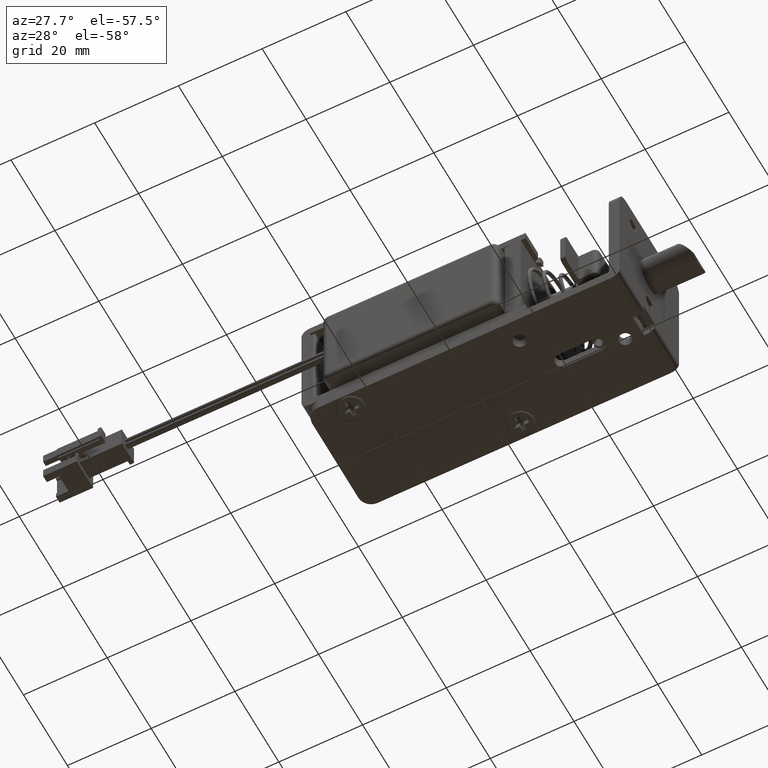
[diagram: clean part render]
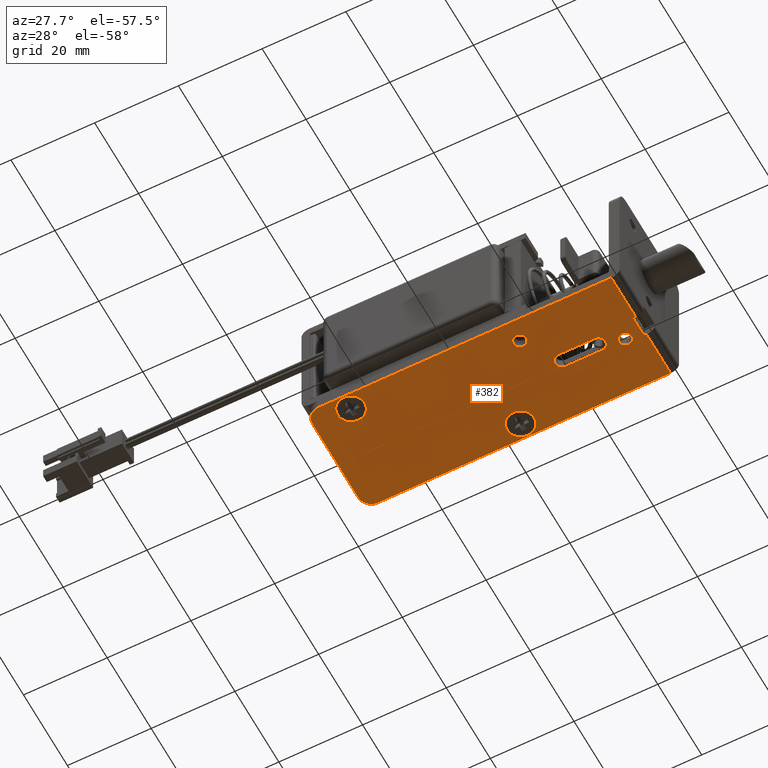
[diagram: same view with one face highlighted and labeled with its STEP entity id]
A machine part, auxiliary view. The second image highlights one B-rep face of the part: STEP entity #382.
In plain terms, the highlighted planar face has unit normal (0, 0, 1).
Its self-contained STEP definition (entity closure, byte-faithful):
#382=ADVANCED_FACE('',(#2879,#2880,#2881,#2882,#2883,#2884),#2878,.F.);
#2878=PLANE('',#5656);
#2879=FACE_OUTER_BOUND('',#5657,.T.);
#2880=FACE_BOUND('',#5658,.T.);
#2881=FACE_BOUND('',#5659,.T.);
#2882=FACE_BOUND('',#5660,.T.);
#2883=FACE_BOUND('',#5661,.T.);
#2884=FACE_BOUND('',#5662,.T.);
#5653=CARTESIAN_POINT('',(-8.23000000000E+01,-1.62000000000E+01,-1.76000000000E+01));
#5654=DIRECTION('',(0.00000000000E+00,-0.00000000000E+00,1.00000000000E+00));
#5655=DIRECTION('',(1.00000000000E+00,0.00000000000E+00,-0.00000000000E+00));
#5656=AXIS2_PLACEMENT_3D('',#5653,#5654,#5655);
#5657=EDGE_LOOP('',(#8918,#8919,#8920,#8921,#8922,#8923,#8924,#8925,#8926,#8927));
#5658=EDGE_LOOP('',(#8928,#8929));
#5659=EDGE_LOOP('',(#8930,#8931));
#5660=EDGE_LOOP('',(#8932,#8933,#8934,#8935));
#5661=EDGE_LOOP('',(#8936,#8937));
#5662=EDGE_LOOP('',(#8938,#8939));
#8918=ORIENTED_EDGE('',*,*,#10437,.T.);
#8919=ORIENTED_EDGE('',*,*,#10438,.T.);
#8920=ORIENTED_EDGE('',*,*,#10439,.F.);
#8921=ORIENTED_EDGE('',*,*,#10440,.T.);
#8922=ORIENTED_EDGE('',*,*,#10441,.F.);
#8923=ORIENTED_EDGE('',*,*,#10442,.T.);
#8924=ORIENTED_EDGE('',*,*,#10237,.F.);
#8925=ORIENTED_EDGE('',*,*,#10240,.F.);
#8926=ORIENTED_EDGE('',*,*,#10241,.F.);
#8927=ORIENTED_EDGE('',*,*,#10443,.T.);
#8928=ORIENTED_EDGE('',*,*,#10444,.T.);
#8929=ORIENTED_EDGE('',*,*,#10445,.T.);
#8930=ORIENTED_EDGE('',*,*,#10446,.F.);
#8931=ORIENTED_EDGE('',*,*,#10447,.F.);
#8932=ORIENTED_EDGE('',*,*,#10228,.F.);
#8933=ORIENTED_EDGE('',*,*,#10221,.F.);
#8934=ORIENTED_EDGE('',*,*,#10224,.F.);
#8935=ORIENTED_EDGE('',*,*,#10226,.F.);
#8936=ORIENTED_EDGE('',*,*,#10448,.F.);
#8937=ORIENTED_EDGE('',*,*,#10449,.F.);
#8938=ORIENTED_EDGE('',*,*,#10450,.T.);
#8939=ORIENTED_EDGE('',*,*,#10451,.T.);
#10221=EDGE_CURVE('',#14062,#14063,#14064,.T.);
#10224=EDGE_CURVE('',#14082,#14062,#14083,.T.);
#10226=EDGE_CURVE('',#14095,#14082,#14096,.T.);
#10228=EDGE_CURVE('',#14063,#14095,#14108,.T.);
#10237=EDGE_CURVE('',#14162,#14169,#14170,.T.);
#10240=EDGE_CURVE('',#14182,#14162,#14189,.T.);
#10241=EDGE_CURVE('',#14195,#14182,#14196,.T.);
#10437=EDGE_CURVE('',#15475,#15476,#15477,.T.);
#10438=EDGE_CURVE('',#15476,#15483,#15484,.T.);
#10439=EDGE_CURVE('',#15490,#15483,#15491,.T.);
#10440=EDGE_CURVE('',#15490,#15497,#15498,.T.);
#10441=EDGE_CURVE('',#15504,#15497,#15505,.T.);
#10442=EDGE_CURVE('',#15504,#14169,#15511,.T.);
#10443=EDGE_CURVE('',#14195,#15475,#15517,.T.);
#10444=EDGE_CURVE('',#15523,#15524,#15525,.T.);
#10445=EDGE_CURVE('',#15524,#15523,#15531,.T.);
#10446=EDGE_CURVE('',#15537,#15538,#15539,.T.);
#10447=EDGE_CURVE('',#15538,#15537,#15545,.T.);
#10448=EDGE_CURVE('',#15551,#15552,#15553,.T.);
#10449=EDGE_CURVE('',#15552,#15551,#15559,.T.);
#10450=EDGE_CURVE('',#15565,#15566,#15567,.T.);
#10451=EDGE_CURVE('',#15566,#15565,#15573,.T.);
#14062=VERTEX_POINT('',#19426);
#14063=VERTEX_POINT('',#19427);
#14064=LINE('',#19428,#19429);
#14082=VERTEX_POINT('',#19437);
#14083=CIRCLE('',#19441,1.65000000000E+00);
#14095=VERTEX_POINT('',#19445);
#14096=LINE('',#19446,#19447);
#14108=CIRCLE('',#19455,1.65000000000E+00);
#14162=VERTEX_POINT('',#19484);
#14169=VERTEX_POINT('',#19488);
#14170=LINE('',#19489,#19490);
#14182=VERTEX_POINT('',#19496);
#14189=LINE('',#19500,#19501);
#14195=VERTEX_POINT('',#19503);
#14196=LINE('',#19504,#19505);
#15475=VERTEX_POINT('',#20249);
#15476=VERTEX_POINT('',#20250);
#15477=LINE('',#20251,#20252);
#15483=VERTEX_POINT('',#20254);
#15484=CIRCLE('',#20258,3.00000000000E+00);
#15490=VERTEX_POINT('',#20259);
#15491=LINE('',#20260,#20261);
#15497=VERTEX_POINT('',#20263);
#15498=CIRCLE('',#20267,3.00000000000E+00);
#15504=VERTEX_POINT('',#20268);
#15505=LINE('',#20269,#20270);
#15511=LINE('',#20272,#20273);
#15517=LINE('',#20275,#20276);
#15523=VERTEX_POINT('',#20278);
#15524=VERTEX_POINT('',#20279);
#15525=CIRCLE('',#20283,3.25000000000E+00);
#15531=CIRCLE('',#20287,3.25000000000E+00);
#15537=VERTEX_POINT('',#20288);
#15538=VERTEX_POINT('',#20289);
#15539=CIRCLE('',#20293,1.50000000000E+00);
#15545=CIRCLE('',#20297,1.50000000000E+00);
#15551=VERTEX_POINT('',#20298);
#15552=VERTEX_POINT('',#20299);
#15553=CIRCLE('',#20303,1.50000000000E+00);
#15559=CIRCLE('',#20307,1.50000000000E+00);
#15565=VERTEX_POINT('',#20308);
#15566=VERTEX_POINT('',#20309);
#15567=CIRCLE('',#20313,3.25000000000E+00);
#15573=CIRCLE('',#20317,3.25000000000E+00);
#19426=CARTESIAN_POINT('',(-1.21500000000E+01,-1.65000000000E+00,-1.76000000000E+01));
#19427=CARTESIAN_POINT('',(-2.08500000000E+01,-1.65000000000E+00,-1.76000000000E+01));
#19428=CARTESIAN_POINT('',(-1.21500000000E+01,-1.65000000000E+00,-1.76000000000E+01));
#19429=VECTOR('',#19430,8.70000000000E+00);
#19430=DIRECTION('',(-1.00000000000E+00,0.00000000000E+00,0.00000000000E+00));
#19437=CARTESIAN_POINT('',(-1.21500000000E+01,1.65000000000E+00,-1.76000000000E+01));
#19438=CARTESIAN_POINT('',(-1.21500000000E+01,0.00000000000E+00,-1.76000000000E+01));
#19439=DIRECTION('',(-0.00000000000E+00,0.00000000000E+00,-1.00000000000E+00));
#19440=DIRECTION('',(-1.00000000000E+00,-0.00000000000E+00,0.00000000000E+00));
#19441=AXIS2_PLACEMENT_3D('',#19438,#19439,#19440);
#19445=CARTESIAN_POINT('',(-2.08500000000E+01,1.65000000000E+00,-1.76000000000E+01));
#19446=CARTESIAN_POINT('',(-2.08500000000E+01,1.65000000000E+00,-1.76000000000E+01));
#19447=VECTOR('',#19448,8.70000000000E+00);
#19448=DIRECTION('',(1.00000000000E+00,0.00000000000E+00,0.00000000000E+00));
#19452=CARTESIAN_POINT('',(-2.08500000000E+01,0.00000000000E+00,-1.76000000000E+01));
#19453=DIRECTION('',(0.00000000000E+00,0.00000000000E+00,-1.00000000000E+00));
#19454=DIRECTION('',(1.83690953073E-16,1.00000000000E+00,0.00000000000E+00));
#19455=AXIS2_PLACEMENT_3D('',#19452,#19453,#19454);
#19484=CARTESIAN_POINT('',(-2.60000000000E+00,2.50000000000E+00,-1.76000000000E+01));
#19488=CARTESIAN_POINT('',(-2.00000000000E+00,2.50000000000E+00,-1.76000000000E+01));
#19489=CARTESIAN_POINT('',(-2.60000000000E+00,2.50000000000E+00,-1.76000000000E+01));
#19490=VECTOR('',#19491,6.00000000000E-01);
#19491=DIRECTION('',(1.00000000000E+00,0.00000000000E+00,0.00000000000E+00));
#19496=CARTESIAN_POINT('',(-2.60000000000E+00,-2.50000000000E+00,-1.76000000000E+01));
#19500=CARTESIAN_POINT('',(-2.60000000000E+00,-2.50000000000E+00,-1.76000000000E+01));
#19501=VECTOR('',#19502,5.00000000000E+00);
#19502=DIRECTION('',(0.00000000000E+00,1.00000000000E+00,0.00000000000E+00));
#19503=CARTESIAN_POINT('',(-2.00000000000E+00,-2.50000000000E+00,-1.76000000000E+01));
#19504=CARTESIAN_POINT('',(-2.00000000000E+00,-2.50000000000E+00,-1.76000000000E+01));
#19505=VECTOR('',#19506,6.00000000000E-01);
#19506=DIRECTION('',(-1.00000000000E+00,0.00000000000E+00,0.00000000000E+00));
#20249=CARTESIAN_POINT('',(-2.00000000000E+00,-1.35000000000E+01,-1.76000000000E+01));
#20250=CARTESIAN_POINT('',(-7.20000000000E+01,-1.35000000000E+01,-1.76000000000E+01));
#20251=CARTESIAN_POINT('',(-2.00000000000E+00,-1.35000000000E+01,-1.76000000000E+01));
#20252=VECTOR('',#20253,7.00000000000E+01);
#20253=DIRECTION('',(-1.00000000000E+00,0.00000000000E+00,0.00000000000E+00));
#20254=CARTESIAN_POINT('',(-7.50000000000E+01,-1.05000000000E+01,-1.76000000000E+01));
#20255=CARTESIAN_POINT('',(-7.20000000000E+01,-1.05000000000E+01,-1.76000000000E+01));
#20256=DIRECTION('',(-0.00000000000E+00,0.00000000000E+00,-1.00000000000E+00));
#20257=DIRECTION('',(-1.00000000000E+00,-0.00000000000E+00,0.00000000000E+00));
#20258=AXIS2_PLACEMENT_3D('',#20255,#20256,#20257);
#20259=CARTESIAN_POINT('',(-7.50000000000E+01,1.05000000000E+01,-1.76000000000E+01));
#20260=CARTESIAN_POINT('',(-7.50000000000E+01,1.05000000000E+01,-1.76000000000E+01));
#20261=VECTOR('',#20262,2.10000000000E+01);
#20262=DIRECTION('',(0.00000000000E+00,-1.00000000000E+00,0.00000000000E+00));
#20263=CARTESIAN_POINT('',(-7.20000000000E+01,1.35000000000E+01,-1.76000000000E+01));
#20264=CARTESIAN_POINT('',(-7.20000000000E+01,1.05000000000E+01,-1.76000000000E+01));
#20265=DIRECTION('',(0.00000000000E+00,0.00000000000E+00,-1.00000000000E+00));
#20266=DIRECTION('',(1.83690953073E-16,1.00000000000E+00,0.00000000000E+00));
#20267=AXIS2_PLACEMENT_3D('',#20264,#20265,#20266);
#20268=CARTESIAN_POINT('',(-2.00000000000E+00,1.35000000000E+01,-1.76000000000E+01));
#20269=CARTESIAN_POINT('',(-2.00000000000E+00,1.35000000000E+01,-1.76000000000E+01));
#20270=VECTOR('',#20271,7.00000000000E+01);
#20271=DIRECTION('',(-1.00000000000E+00,0.00000000000E+00,0.00000000000E+00));
#20272=CARTESIAN_POINT('',(-2.00000000000E+00,1.35000000000E+01,-1.76000000000E+01));
#20273=VECTOR('',#20274,1.10000000000E+01);
#20274=DIRECTION('',(0.00000000000E+00,-1.00000000000E+00,0.00000000000E+00));
#20275=CARTESIAN_POINT('',(-2.00000000000E+00,-2.50000000000E+00,-1.76000000000E+01));
#20276=VECTOR('',#20277,1.10000000000E+01);
#20277=DIRECTION('',(0.00000000000E+00,-1.00000000000E+00,0.00000000000E+00));
#20278=CARTESIAN_POINT('',(-6.27500000000E+01,-1.00000000000E+01,-1.76000000000E+01));
#20279=CARTESIAN_POINT('',(-6.92500000000E+01,-1.00000000000E+01,-1.76000000000E+01));
#20280=CARTESIAN_POINT('',(-6.60000000000E+01,-1.00000000000E+01,-1.76000000000E+01));
#20281=DIRECTION('',(0.00000000000E+00,-0.00000000000E+00,1.00000000000E+00));
#20282=DIRECTION('',(1.00000000000E+00,-1.22460635382E-16,-0.00000000000E+00));
#20283=AXIS2_PLACEMENT_3D('',#20280,#20281,#20282);
#20284=CARTESIAN_POINT('',(-6.60000000000E+01,-1.00000000000E+01,-1.76000000000E+01));
#20285=DIRECTION('',(0.00000000000E+00,-0.00000000000E+00,1.00000000000E+00));
#20286=DIRECTION('',(1.00000000000E+00,-1.22460635382E-16,-0.00000000000E+00));
#20287=AXIS2_PLACEMENT_3D('',#20284,#20285,#20286);
#20288=CARTESIAN_POINT('',(-2.80000000000E+01,-8.50000000000E+00,-1.76000000000E+01));
#20289=CARTESIAN_POINT('',(-2.50000000000E+01,-8.50000000000E+00,-1.76000000000E+01));
#20290=CARTESIAN_POINT('',(-2.65000000000E+01,-8.50000000000E+00,-1.76000000000E+01));
#20291=DIRECTION('',(0.00000000000E+00,0.00000000000E+00,-1.00000000000E+00));
#20292=DIRECTION('',(1.00000000000E+00,-1.22460635382E-16,-0.00000000000E+00));
#20293=AXIS2_PLACEMENT_3D('',#20290,#20291,#20292);
#20294=CARTESIAN_POINT('',(-2.65000000000E+01,-8.50000000000E+00,-1.76000000000E+01));
#20295=DIRECTION('',(0.00000000000E+00,0.00000000000E+00,-1.00000000000E+00));
#20296=DIRECTION('',(1.00000000000E+00,-1.22460635382E-16,-0.00000000000E+00));
#20297=AXIS2_PLACEMENT_3D('',#20294,#20295,#20296);
#20298=CARTESIAN_POINT('',(-8.00000000000E+00,1.50000000000E+00,-1.76000000000E+01));
#20299=CARTESIAN_POINT('',(-5.00000000000E+00,1.50000000000E+00,-1.76000000000E+01));
#20300=CARTESIAN_POINT('',(-6.50000000000E+00,1.50000000000E+00,-1.76000000000E+01));
#20301=DIRECTION('',(0.00000000000E+00,0.00000000000E+00,-1.00000000000E+00));
#20302=DIRECTION('',(1.00000000000E+00,-1.22460635382E-16,-0.00000000000E+00));
#20303=AXIS2_PLACEMENT_3D('',#20300,#20301,#20302);
#20304=CARTESIAN_POINT('',(-6.50000000000E+00,1.50000000000E+00,-1.76000000000E+01));
#20305=DIRECTION('',(0.00000000000E+00,0.00000000000E+00,-1.00000000000E+00));
#20306=DIRECTION('',(1.00000000000E+00,-1.22460635382E-16,-0.00000000000E+00));
#20307=AXIS2_PLACEMENT_3D('',#20304,#20305,#20306);
#20308=CARTESIAN_POINT('',(-3.27500000000E+01,1.00000000000E+01,-1.76000000000E+01));
#20309=CARTESIAN_POINT('',(-3.92500000000E+01,1.00000000000E+01,-1.76000000000E+01));
#20310=CARTESIAN_POINT('',(-3.60000000000E+01,1.00000000000E+01,-1.76000000000E+01));
#20311=DIRECTION('',(0.00000000000E+00,-0.00000000000E+00,1.00000000000E+00));
#20312=DIRECTION('',(1.00000000000E+00,-1.22460635382E-16,-0.00000000000E+00));
#20313=AXIS2_PLACEMENT_3D('',#20310,#20311,#20312);
#20314=CARTESIAN_POINT('',(-3.60000000000E+01,1.00000000000E+01,-1.76000000000E+01));
#20315=DIRECTION('',(0.00000000000E+00,-0.00000000000E+00,1.00000000000E+00));
#20316=DIRECTION('',(1.00000000000E+00,-1.22460635382E-16,-0.00000000000E+00));
#20317=AXIS2_PLACEMENT_3D('',#20314,#20315,#20316);